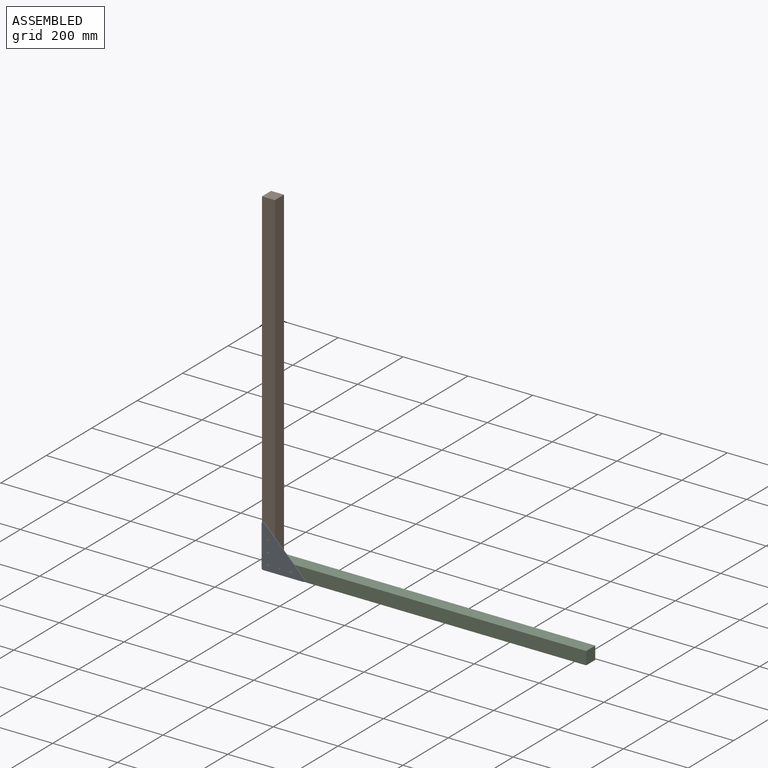
[diagram: assembled view]
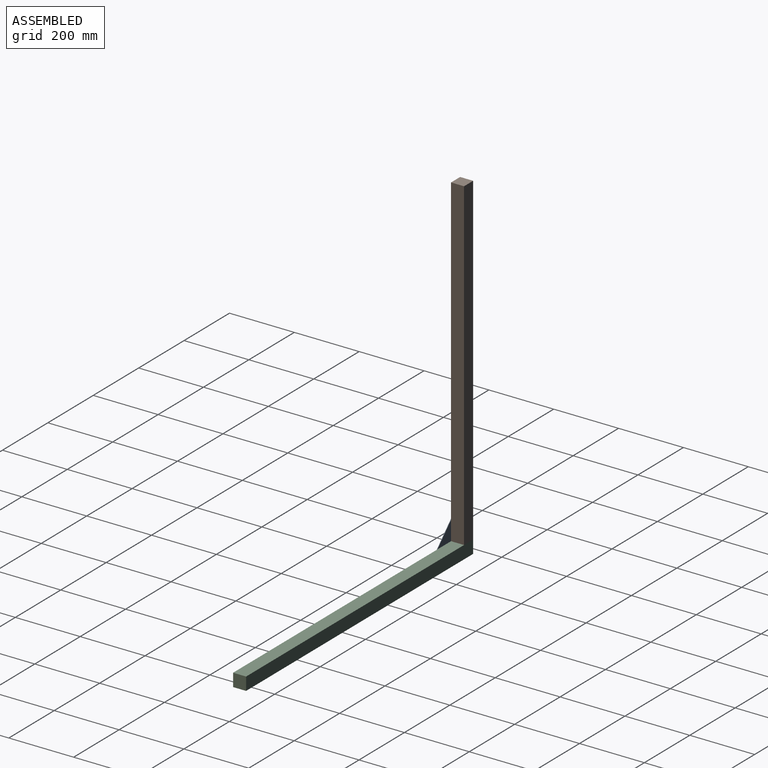
[diagram: assembled view, second angle]
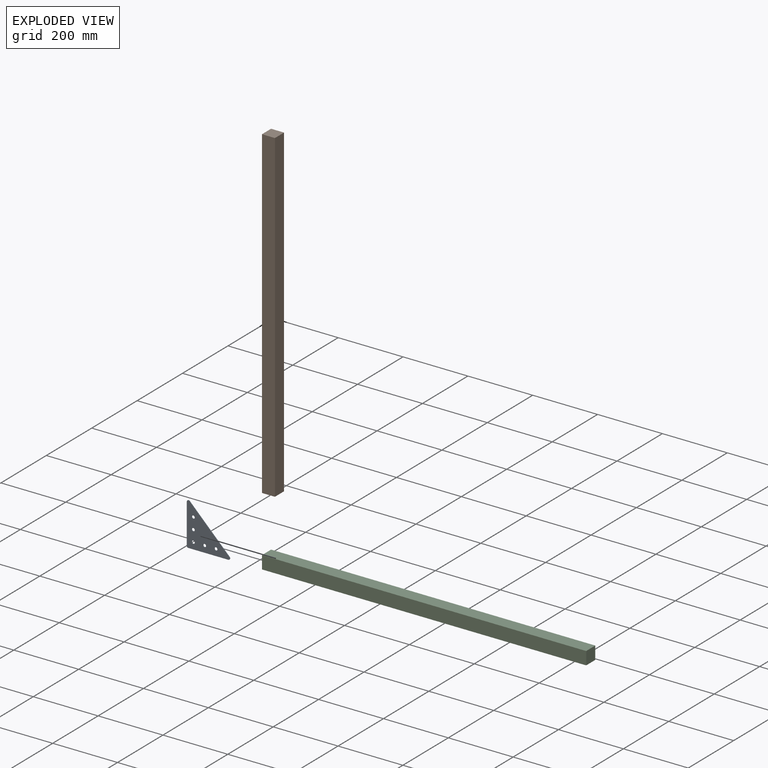
[diagram: exploded view]
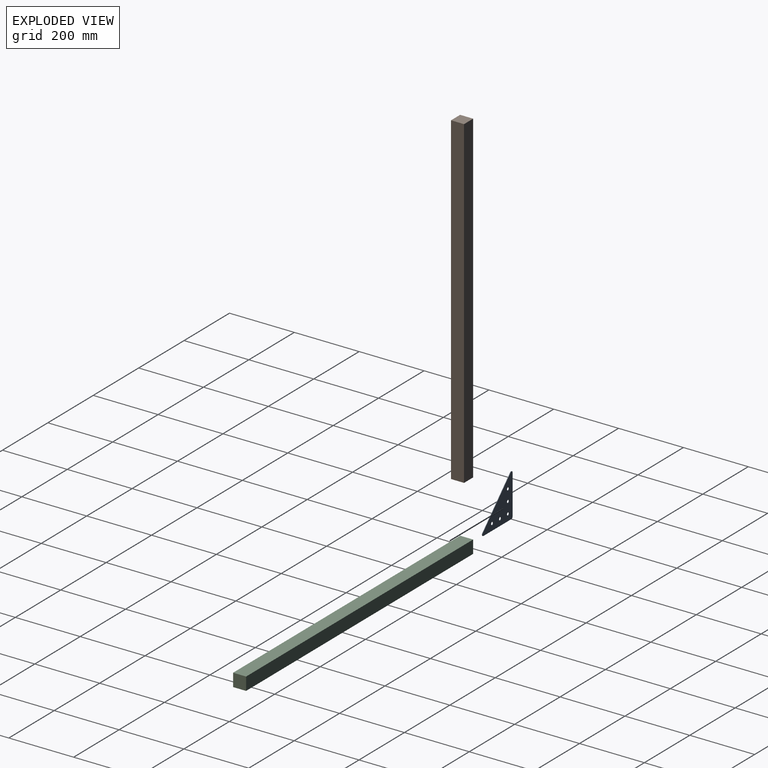
[diagram: exploded view, second angle]
ASSEMBLY  parts=3 mates=6
PART A: 13 faces, bbox 132.9x1.5x132.9 mm
  f0: plane 122.93x122.93mm, normal (0.71,0,0.71), area 260.8mm2, adj f1,f9,f11,f12
  f1: cylinder r=5mm len=8.54mm, axis (0,1,0), area 17.7mm2, adj f0,f2,f11,f12
  f2: plane 122.93x1.5mm, normal (-1,0,0), area 184.4mm2, adj f1,f3,f11,f12
  f3: cylinder r=5mm len=5mm, axis (0,1,0), area 11.8mm2, adj f2,f4,f11,f12
  f4: plane 122.93x1.5mm, normal (0,0,-1), area 184.4mm2, adj f3,f9,f11,f12
  f5: cylinder r=4.5mm len=9mm, axis (0,1,0), area 42.4mm2, adj f11,f12
  f6: cylinder r=4.5mm len=9mm, axis (0,1,0), area 42.4mm2, adj f11,f12
  f7: cylinder r=4.5mm len=9mm, axis (0,1,0), area 42.4mm2, adj f11,f12
  f8: cylinder r=4.5mm len=9mm, axis (0,1,0), area 42.4mm2, adj f11,f12
  f9: cylinder r=5mm len=8.54mm, axis (0,1,0), area 17.7mm2, adj f0,f4,f11,f12
  f10: cylinder r=4.5mm len=9mm, axis (0,1,0), area 42.4mm2, adj f11,f12
  f11: plane 132.93x132.93mm, normal (0,-1,0), area 9414.7mm2, adj f0,f1,f2,f3,f4,f5,f6,f7
  f12: plane 132.93x132.93mm, normal (0,1,0), area 9414.7mm2, adj f0,f1,f2,f3,f4,f5,f6,f7
PART B: 6 faces, bbox 1000x40x40 mm
  f0: plane 40x40mm, normal (-1,0,0), area 1600mm2, adj f1,f3,f4,f5
  f1: plane 1000x40mm, normal (0,0,-1), area 40000mm2, adj f0,f2,f4,f5
  f2: plane 40x40mm, normal (1,0,0), area 1600mm2, adj f1,f3,f4,f5
  f3: plane 1000x40mm, normal (0,0,1), area 40000mm2, adj f0,f2,f4,f5
  f4: plane 1000x40mm, normal (0,1,0), area 40000mm2, adj f0,f1,f2,f3
  f5: plane 1000x40mm, normal (0,-1,0), area 40000mm2, adj f0,f1,f2,f3
PART C: same geometry as B
PLACE A t=(-336.22,116.46,-28.27)mm
PLACE B rot(axis=(0,-1,0),90deg) t=(-296.22,116.46,11.73)mm
PLACE C t=(-336.22,116.46,-28.27)mm
MATE planar B.f5 <-> A.f12  axis (0,-1,0) through (-316.22,116.46,511.73)mm
MATE planar A.f2 <-> C.f0  axis (-1,0,0) through (-336.22,115.71,38.19)mm
MATE planar A.f4 <-> C.f1  axis (0,0,-1) through (-269.76,115.71,-28.27)mm
MATE planar A.f12 <-> C.f5  axis (0,1,0) through (-289.48,116.46,18.47)mm
MATE planar B.f3 <-> C.f0  axis (-1,0,0) through (-336.22,136.46,511.73)mm
MATE planar B.f0 <-> C.f3  axis (0,0,-1) through (-316.22,136.46,11.73)mm
